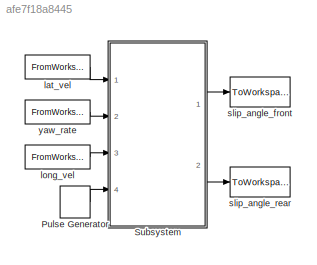
MODEL slx_afe7f18a8445
KIND model
CONFIG AbsTol = auto
CONFIG FixedStep = auto
CONFIG MaxStep = auto
CONFIG MinStep = auto
CONFIG RelTol = 1e-3
CONFIG SampleTimeConstraint = Unconstrained
CONFIG Solver = ode3
CONFIG SolverMode = Auto
CONFIG SolverName = ode3
CONFIG StartTime = 0
CONFIG StopTime = 5
BLOCK [DiscretePulseGenerator] Pulse Generator
  Amplitude = 0
  Period = 10
  Ports = [0, 1]
  PulseWidth = 10
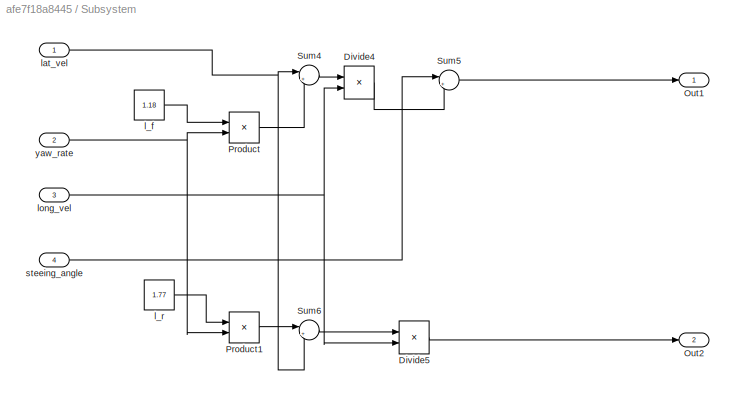
BLOCK [SubSystem] Subsystem
  Ports = [4, 2]
  RequestExecContextInheritance = off
BLOCK [Product] Subsystem/Divide4
  InputSameDT = off
  Inputs = */
  OutDataTypeStr = Inherit: Inherit via internal rule
  Ports = [2, 1]
  RndMeth = Floor
  SaturateOnIntegerOverflow = off
BLOCK [Product] Subsystem/Divide5
  InputSameDT = off
  Inputs = */
  OutDataTypeStr = Inherit: Inherit via internal rule
  Ports = [2, 1]
  RndMeth = Floor
  SaturateOnIntegerOverflow = off
BLOCK [Outport] Subsystem/Out1
  IconDisplay = Port number
BLOCK [Outport] Subsystem/Out2
  IconDisplay = Port number
  Port = 2
BLOCK [Product] Subsystem/Product
  InputSameDT = off
  OutDataTypeStr = Inherit: Inherit via internal rule
  Ports = [2, 1]
  RndMeth = Floor
  SaturateOnIntegerOverflow = off
BLOCK [Product] Subsystem/Product1
  InputSameDT = off
  OutDataTypeStr = Inherit: Inherit via internal rule
  Ports = [2, 1]
  RndMeth = Floor
  SaturateOnIntegerOverflow = off
BLOCK [Sum] Subsystem/Sum4
  IconShape = round
  InputSameDT = off
  Inputs = |++
  OutDataTypeStr = Inherit: Inherit via internal rule
  Ports = [2, 1]
  SaturateOnIntegerOverflow = off
BLOCK [Sum] Subsystem/Sum5
  IconShape = round
  InputSameDT = off
  Inputs = |+-
  OutDataTypeStr = Inherit: Inherit via internal rule
  Ports = [2, 1]
  SaturateOnIntegerOverflow = off
BLOCK [Sum] Subsystem/Sum6
  IconShape = round
  InputSameDT = off
  Inputs = |+-
  OutDataTypeStr = Inherit: Inherit via internal rule
  Ports = [2, 1]
  SaturateOnIntegerOverflow = off
BLOCK [Constant] Subsystem/l_f
  Value = 1.18
BLOCK [Constant] Subsystem/l_r
  Value = 1.77
BLOCK [Inport] Subsystem/lat_vel
  IconDisplay = Port number
BLOCK [Inport] Subsystem/long_vel
  IconDisplay = Port number
  Port = 3
BLOCK [Inport] Subsystem/steeing_angle 
  IconDisplay = Port number
  Port = 4
BLOCK [Inport] Subsystem/yaw_rate
  IconDisplay = Port number
  Port = 2
BLOCK [FromWorkspace] lat_vel
  SampleTime = 0
  VariableName = lat_vel
  ZeroCross = on
BLOCK [FromWorkspace] long_vel
  SampleTime = 0
  VariableName = long_vel
  ZeroCross = on
BLOCK [ToWorkspace] slip_angle_front
  FixptAsFi = on
  MaxDataPoints = inf
  Ports = [1]
  SampleTime = -1
  Save2DSignal = 3-D array (concatenate along third dimension)
  SaveFormat = Timeseries
  VariableName = slip_angle_f
BLOCK [ToWorkspace] slip_angle_rear
  FixptAsFi = on
  MaxDataPoints = inf
  Ports = [1]
  SampleTime = -1
  Save2DSignal = 3-D array (concatenate along third dimension)
  SaveFormat = Timeseries
  VariableName = slip_angle_r
BLOCK [FromWorkspace] yaw_rate
  SampleTime = 0
  VariableName = yaw_rate
  ZeroCross = on
LINE Pulse Generator:1 -> Subsystem:4
LINE Subsystem/Divide4:1 -> Subsystem/Sum5:2
LINE Subsystem/Divide5:1 -> Subsystem/Out2:1
LINE Subsystem/Product1:1 -> Subsystem/Sum6:1
LINE Subsystem/Product:1 -> Subsystem/Sum4:2
LINE Subsystem/Sum4:1 -> Subsystem/Divide4:1
LINE Subsystem/Sum5:1 -> Subsystem/Out1:1
LINE Subsystem/Sum6:1 -> Subsystem/Divide5:1
LINE Subsystem/l_f:1 -> Subsystem/Product:1
LINE Subsystem/l_r:1 -> Subsystem/Product1:1
NET Subsystem/lat_vel:1 -> Subsystem/Sum4:1, Subsystem/Sum6:2
NET Subsystem/long_vel:1 -> Subsystem/Divide4:2, Subsystem/Divide5:2
LINE Subsystem/steeing_angle :1 -> Subsystem/Sum5:1
NET Subsystem/yaw_rate:1 -> Subsystem/Product1:2, Subsystem/Product:2
LINE Subsystem:1 -> slip_angle_front:1
LINE Subsystem:2 -> slip_angle_rear:1
LINE lat_vel:1 -> Subsystem:1
LINE long_vel:1 -> Subsystem:3
LINE yaw_rate:1 -> Subsystem:2
note: NET lines group one-source signal fan-out (src -> all destinations, sorted); 1:1 wires keep LINE
